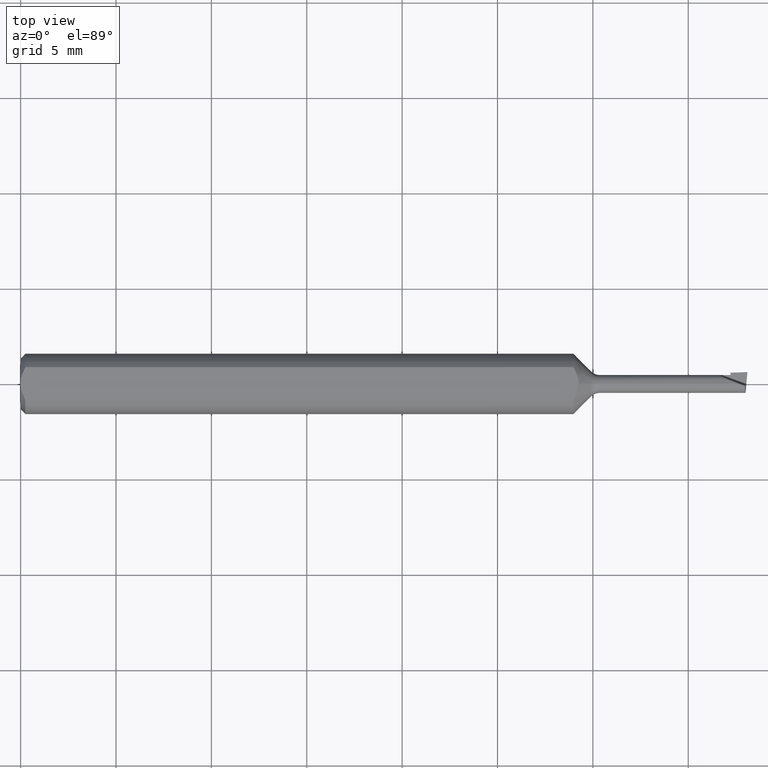
[diagram: clean part render]
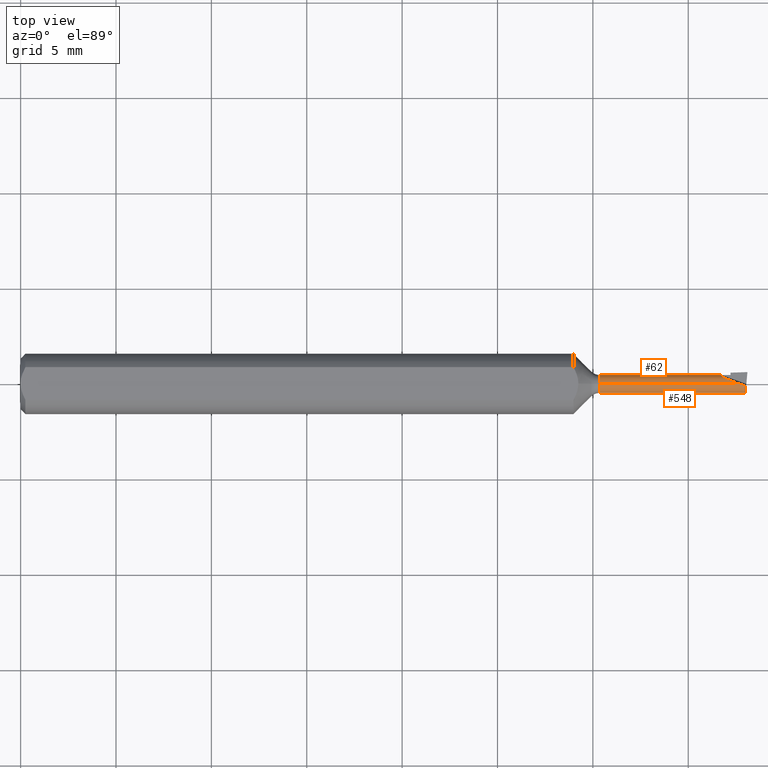
[diagram: same view with one multi-face feature highlighted, each face labeled with its STEP entity id]
A machine part, top view. The highlighted faces form ONE feature: a constant-radius fillet chain: 2 tangent blend faces with common blend radius 0.4699 mm. The faces share edges in the B-rep.
Their STEP definitions:
[1] entity #548 (Cylinder):
#7 =( BOUNDED_CURVE ( )  B_SPLINE_CURVE ( 3, ( #480, #334, #144, #529 ),
 .UNSPECIFIED., .F., .F. ) 
 B_SPLINE_CURVE_WITH_KNOTS ( ( 4, 4 ),
 ( 5.951448363857583246, 7.298880934359464945 ),
 .UNSPECIFIED. ) 
 CURVE ( )  GEOMETRIC_REPRESENTATION_ITEM ( )  RATIONAL_B_SPLINE_CURVE ( ( 1.000000000000000000, 0.8543389983611022753, 0.8543389983611022753, 1.000000000000000000 ) ) 
 REPRESENTATION_ITEM ( '' )  );
#12 =( BOUNDED_CURVE ( )  B_SPLINE_CURVE ( 3, ( #616, #91, #581, #425 ),
 .UNSPECIFIED., .F., .F. ) 
 B_SPLINE_CURVE_WITH_KNOTS ( ( 4, 4 ),
 ( 5.728084607564618125, 7.298880934359528894 ),
 .UNSPECIFIED. ) 
 CURVE ( )  GEOMETRIC_REPRESENTATION_ITEM ( )  RATIONAL_B_SPLINE_CURVE ( ( 1.000000000000000000, 0.8047378541243617178, 0.8047378541243617178, 1.000000000000000000 ) ) 
 REPRESENTATION_ITEM ( '' )  );
#17 = ORIENTED_EDGE ( 'NONE', *, *, #364, .T. ) ;
#26 = VERTEX_POINT ( 'NONE', #348 ) ;
#46 = CARTESIAN_POINT ( 'NONE',  ( 1.487126106453287244, -0.001380280959563399447, 0.01850000000000000602 ) ) ;
#56 = EDGE_LOOP ( 'NONE', ( #467, #411, #431, #479, #17, #503 ) ) ;
#67 = EDGE_CURVE ( 'NONE', #143, #620, #317, .T. ) ;
#90 = VERTEX_POINT ( 'NONE', #599 ) ;
#91 = CARTESIAN_POINT ( 'NONE',  ( 1.494298471761238201, -0.01083704909609784980, -0.01850000000000001643 ) ) ;
#99 = CYLINDRICAL_SURFACE ( 'NONE', #485, 0.01850000000000000255 ) ;
#130 = VERTEX_POINT ( 'NONE', #212 ) ;
#139 = CARTESIAN_POINT ( 'NONE',  ( 1.483333815684383605, 0.000000000000000000, 0.01850000000000000255 ) ) ;
#143 = VERTEX_POINT ( 'NONE', #252 ) ;
#144 = CARTESIAN_POINT ( 'NONE',  ( 1.494967355536287013, -0.01849999999999990541, 0.009006612182587492646 ) ) ;
#178 = LINE ( 'NONE', #530, #306 ) ;
#190 = AXIS2_PLACEMENT_3D ( 'NONE', #277, #377, #619 ) ;
#195 = FACE_OUTER_BOUND ( 'NONE', #56, .T. ) ;
#212 = CARTESIAN_POINT ( 'NONE',  ( 1.195355339059327449, 0.000000000000000000, 0.01850000000000000949 ) ) ;
#247 = DIRECTION ( 'NONE',  ( 0.000000000000000000, 0.000000000000000000, 1.000000000000000000 ) ) ;
#252 = CARTESIAN_POINT ( 'NONE',  ( 1.494952902551172302, -0.004097954674002866546, 0.01804042038007480295 ) ) ;
#277 = CARTESIAN_POINT ( 'NONE',  ( 1.195355339059327449, 0.000000000000000000, 0.000000000000000000 ) ) ;
#298 = CARTESIAN_POINT ( 'NONE',  ( 0.000000000000000000, 0.000000000000000000, 0.000000000000000000 ) ) ;
#306 = VECTOR ( 'NONE', #323, 39.37007874015748143 ) ;
#317 =( BOUNDED_CURVE ( )  B_SPLINE_CURVE ( 3, ( #545, #605, #46, #541 ),
 .UNSPECIFIED., .F., .F. ) 
 B_SPLINE_CURVE_WITH_KNOTS ( ( 4, 4 ),
 ( 4.766799014753298813, 4.990162771046300350 ),
 .UNSPECIFIED. ) 
 CURVE ( )  GEOMETRIC_REPRESENTATION_ITEM ( )  RATIONAL_B_SPLINE_CURVE ( ( 1.000000000000000000, 0.9958467056734143785, 0.9958467056734143785, 1.000000000000000000 ) ) 
 REPRESENTATION_ITEM ( '' )  );
#323 = DIRECTION ( 'NONE',  ( -1.000000000000000000, -0.000000000000000000, -0.000000000000000000 ) ) ;
#334 = CARTESIAN_POINT ( 'NONE',  ( 1.494465960141844851, -0.01288082332125570564, 0.01604535613734157234 ) ) ;
#348 = CARTESIAN_POINT ( 'NONE',  ( 1.496237987468385322, -0.01849999999999996439, 2.732599657287118718E-16 ) ) ;
#364 = EDGE_CURVE ( 'NONE', #620, #130, #178, .T. ) ;
#377 = DIRECTION ( 'NONE',  ( -1.000000000000000000, -0.000000000000000000, -0.000000000000000000 ) ) ;
#383 = LINE ( 'NONE', #422, #606 ) ;
#411 = ORIENTED_EDGE ( 'NONE', *, *, #463, .T. ) ;
#422 = CARTESIAN_POINT ( 'NONE',  ( 0.000000000000000000, 2.265596578422603809E-18, -0.01850000000000000255 ) ) ;
#425 = CARTESIAN_POINT ( 'NONE',  ( 1.496237987468385322, -0.01849999999999996439, 2.732599657287118718E-16 ) ) ;
#427 = CIRCLE ( 'NONE', #190, 0.01850000000000000949 ) ;
#431 = ORIENTED_EDGE ( 'NONE', *, *, #643, .F. ) ;
#433 = DIRECTION ( 'NONE',  ( -1.000000000000000000, -0.000000000000000000, -0.000000000000000000 ) ) ;
#443 = EDGE_CURVE ( 'NONE', #90, #130, #427, .T. ) ;
#463 = EDGE_CURVE ( 'NONE', #570, #26, #12, .T. ) ;
#467 = ORIENTED_EDGE ( 'NONE', *, *, #611, .F. ) ;
#479 = ORIENTED_EDGE ( 'NONE', *, *, #67, .T. ) ;
#480 = CARTESIAN_POINT ( 'NONE',  ( 1.494952902551172302, -0.004097954674002866546, 0.01804042038007480295 ) ) ;
#485 = AXIS2_PLACEMENT_3D ( 'NONE', #298, #493, #247 ) ;
#493 = DIRECTION ( 'NONE',  ( -1.000000000000000000, -0.000000000000000000, -0.000000000000000000 ) ) ;
#503 = ORIENTED_EDGE ( 'NONE', *, *, #443, .F. ) ;
#529 = CARTESIAN_POINT ( 'NONE',  ( 1.496237987468385322, -0.01849999999999996439, 2.732599657287118718E-16 ) ) ;
#530 = CARTESIAN_POINT ( 'NONE',  ( 0.000000000000000000, 0.000000000000000000, 0.01850000000000000255 ) ) ;
#541 = CARTESIAN_POINT ( 'NONE',  ( 1.483333815684383605, 0.000000000000000000, 0.01850000000000000255 ) ) ;
#545 = CARTESIAN_POINT ( 'NONE',  ( 1.494952902551172302, -0.004097954674002866546, 0.01804042038007480295 ) ) ;
#548 = ADVANCED_FACE ( 'NONE', ( #195 ), #99, .T. ) ;
#570 = VERTEX_POINT ( 'NONE', #578 ) ;
#578 = CARTESIAN_POINT ( 'NONE',  ( 1.495246590703220857, 2.265596578422603809E-18, -0.01850000000000000255 ) ) ;
#581 = CARTESIAN_POINT ( 'NONE',  ( 1.494709121747062719, -0.01850000000000015174, -0.01083704909609761562 ) ) ;
#599 = CARTESIAN_POINT ( 'NONE',  ( 1.195355339059327449, 2.265596578422604194E-18, -0.01850000000000000949 ) ) ;
#605 = CARTESIAN_POINT ( 'NONE',  ( 1.491015288325890253, -0.002751962849509067850, 0.01834616788330073467 ) ) ;
#606 = VECTOR ( 'NONE', #433, 39.37007874015748143 ) ;
#611 = EDGE_CURVE ( 'NONE', #570, #90, #383, .T. ) ;
#616 = CARTESIAN_POINT ( 'NONE',  ( 1.495246590703220857, 2.265596578422603809E-18, -0.01850000000000000255 ) ) ;
#619 = DIRECTION ( 'NONE',  ( 0.000000000000000000, 0.000000000000000000, 1.000000000000000000 ) ) ;
#620 = VERTEX_POINT ( 'NONE', #139 ) ;
#643 = EDGE_CURVE ( 'NONE', #143, #26, #7, .T. ) ;
[2] entity #62 (Cylinder):
#1 = CARTESIAN_POINT ( 'NONE',  ( 0.000000000000000000, 0.000000000000000000, 0.000000000000000000 ) ) ;
#9 = DIRECTION ( 'NONE',  ( -1.000000000000000000, -0.000000000000000000, -0.000000000000000000 ) ) ;
#29 = ORIENTED_EDGE ( 'NONE', *, *, #611, .T. ) ;
#43 = CARTESIAN_POINT ( 'NONE',  ( 1.446998957439701083, 0.01849999999999999908, -4.483286445232968331E-18 ) ) ;
#62 = ADVANCED_FACE ( 'NONE', ( #257 ), #206, .T. ) ;
#70 = CARTESIAN_POINT ( 'NONE',  ( 1.495558491035186899, 0.003224263161052950705, -0.01828867062739698499 ) ) ;
#78 =( BOUNDED_CURVE ( )  B_SPLINE_CURVE ( 3, ( #95, #292, #487, #43 ),
 .UNSPECIFIED., .F., .F. ) 
 B_SPLINE_CURVE_WITH_KNOTS ( ( 4, 4 ),
 ( 4.990162771046300350, 6.560959097841200460 ),
 .UNSPECIFIED. ) 
 CURVE ( )  GEOMETRIC_REPRESENTATION_ITEM ( )  RATIONAL_B_SPLINE_CURVE ( ( 1.000000000000000000, 0.8047378541243641603, 0.8047378541243641603, 1.000000000000000000 ) ) 
 REPRESENTATION_ITEM ( '' )  );
#81 = DIRECTION ( 'NONE',  ( -1.000000000000000000, 0.000000000000000000, 0.000000000000000000 ) ) ;
#85 = EDGE_CURVE ( 'NONE', #130, #90, #544, .T. ) ;
#90 = VERTEX_POINT ( 'NONE', #599 ) ;
#95 = CARTESIAN_POINT ( 'NONE',  ( 1.483333815684383605, 0.000000000000000000, 0.01850000000000000255 ) ) ;
#114 = DIRECTION ( 'NONE',  ( 1.000000000000000000, 0.000000000000000000, 0.000000000000000000 ) ) ;
#117 = VECTOR ( 'NONE', #114, 39.37007874015748143 ) ;
#130 = VERTEX_POINT ( 'NONE', #212 ) ;
#139 = CARTESIAN_POINT ( 'NONE',  ( 1.483333815684383605, 0.000000000000000000, 0.01850000000000000255 ) ) ;
#158 = DIRECTION ( 'NONE',  ( -1.000000000000000000, -0.000000000000000000, -0.000000000000000000 ) ) ;
#174 = VERTEX_POINT ( 'NONE', #518 ) ;
#178 = LINE ( 'NONE', #530, #306 ) ;
#180 = AXIS2_PLACEMENT_3D ( 'NONE', #466, #365, #524 ) ;
#191 = LINE ( 'NONE', #526, #452 ) ;
#206 = CYLINDRICAL_SURFACE ( 'NONE', #294, 0.01850000000000000255 ) ;
#209 = VERTEX_POINT ( 'NONE', #408 ) ;
#212 = CARTESIAN_POINT ( 'NONE',  ( 1.195355339059327449, 0.000000000000000000, 0.01850000000000000949 ) ) ;
#228 = CARTESIAN_POINT ( 'NONE',  ( 1.495754431199804557, 0.004788152334396648772, -0.01786962778634774984 ) ) ;
#243 = EDGE_CURVE ( 'NONE', #547, #174, #267, .T. ) ;
#255 = DIRECTION ( 'NONE',  ( 0.000000000000000000, 0.000000000000000000, 1.000000000000000000 ) ) ;
#257 = FACE_OUTER_BOUND ( 'NONE', #582, .T. ) ;
#265 = AXIS2_PLACEMENT_3D ( 'NONE', #446, #9, #255 ) ;
#267 = LINE ( 'NONE', #456, #117 ) ;
#273 = CARTESIAN_POINT ( 'NONE',  ( 1.495754431199804557, 0.004788152334396648772, -0.01786962778634774984 ) ) ;
#286 = EDGE_CURVE ( 'NONE', #330, #570, #380, .T. ) ;
#292 = CARTESIAN_POINT ( 'NONE',  ( 1.453559267999332549, 0.01083704909609771623, 0.01850000000000004072 ) ) ;
#294 = AXIS2_PLACEMENT_3D ( 'NONE', #1, #158, #347 ) ;
#306 = VECTOR ( 'NONE', #323, 39.37007874015748143 ) ;
#323 = DIRECTION ( 'NONE',  ( -1.000000000000000000, -0.000000000000000000, -0.000000000000000000 ) ) ;
#325 = ORIENTED_EDGE ( 'NONE', *, *, #364, .F. ) ;
#330 = VERTEX_POINT ( 'NONE', #273 ) ;
#333 = ORIENTED_EDGE ( 'NONE', *, *, #243, .T. ) ;
#347 = DIRECTION ( 'NONE',  ( 0.000000000000000000, 0.000000000000000000, 1.000000000000000000 ) ) ;
#364 = EDGE_CURVE ( 'NONE', #620, #130, #178, .T. ) ;
#365 = DIRECTION ( 'NONE',  ( -1.000000000000000000, -0.000000000000000000, -0.000000000000000000 ) ) ;
#380 =( BOUNDED_CURVE ( )  B_SPLINE_CURVE ( 3, ( #228, #70, #506, #607 ),
 .UNSPECIFIED., .F., .F. ) 
 B_SPLINE_CURVE_WITH_KNOTS ( ( 4, 4 ),
 ( 5.466285219765468995, 5.728084607564618125 ),
 .UNSPECIFIED. ) 
 CURVE ( )  GEOMETRIC_REPRESENTATION_ITEM ( )  RATIONAL_B_SPLINE_CURVE ( ( 1.000000000000000000, 0.9942965742492069214, 0.9942965742492069214, 1.000000000000000000 ) ) 
 REPRESENTATION_ITEM ( '' )  );
#383 = LINE ( 'NONE', #422, #606 ) ;
#389 = EDGE_CURVE ( 'NONE', #174, #209, #513, .T. ) ;
#408 = CARTESIAN_POINT ( 'NONE',  ( 1.465000000000000080, 0.004788152334396648772, -0.01786962778634774984 ) ) ;
#422 = CARTESIAN_POINT ( 'NONE',  ( 0.000000000000000000, 2.265596578422603809E-18, -0.01850000000000000255 ) ) ;
#424 = ORIENTED_EDGE ( 'NONE', *, *, #286, .T. ) ;
#433 = DIRECTION ( 'NONE',  ( -1.000000000000000000, -0.000000000000000000, -0.000000000000000000 ) ) ;
#446 = CARTESIAN_POINT ( 'NONE',  ( 1.195355339059327449, 0.000000000000000000, 0.000000000000000000 ) ) ;
#452 = VECTOR ( 'NONE', #81, 39.37007874015748143 ) ;
#456 = CARTESIAN_POINT ( 'NONE',  ( 2.815371162439451627E-33, 0.01850000000000000255, -6.508939666095427711E-17 ) ) ;
#459 = ORIENTED_EDGE ( 'NONE', *, *, #85, .F. ) ;
#466 = CARTESIAN_POINT ( 'NONE',  ( 1.465000000000000080, 0.000000000000000000, 0.000000000000000000 ) ) ;
#474 = EDGE_CURVE ( 'NONE', #330, #209, #191, .T. ) ;
#487 = CARTESIAN_POINT ( 'NONE',  ( 1.438508876927481195, 0.01850000000000000949, 0.01083704909609776827 ) ) ;
#498 = ORIENTED_EDGE ( 'NONE', *, *, #389, .T. ) ;
#506 = CARTESIAN_POINT ( 'NONE',  ( 1.495388239854692269, 0.001619057209963974077, -0.01849999999999999908 ) ) ;
#513 = CIRCLE ( 'NONE', #180, 0.01849999999999999908 ) ;
#518 = CARTESIAN_POINT ( 'NONE',  ( 1.465000000000000080, 0.01850000000000000255, -6.508939666095427711E-17 ) ) ;
#524 = DIRECTION ( 'NONE',  ( 0.000000000000000000, 0.000000000000000000, 1.000000000000000000 ) ) ;
#526 = CARTESIAN_POINT ( 'NONE',  ( 1.560200597524541877, 0.004788152334396648772, -0.01786962778634774984 ) ) ;
#530 = CARTESIAN_POINT ( 'NONE',  ( 0.000000000000000000, 0.000000000000000000, 0.01850000000000000255 ) ) ;
#544 = CIRCLE ( 'NONE', #265, 0.01850000000000000949 ) ;
#547 = VERTEX_POINT ( 'NONE', #633 ) ;
#554 = EDGE_CURVE ( 'NONE', #620, #547, #78, .T. ) ;
#570 = VERTEX_POINT ( 'NONE', #578 ) ;
#576 = ORIENTED_EDGE ( 'NONE', *, *, #554, .T. ) ;
#578 = CARTESIAN_POINT ( 'NONE',  ( 1.495246590703220857, 2.265596578422603809E-18, -0.01850000000000000255 ) ) ;
#582 = EDGE_LOOP ( 'NONE', ( #424, #29, #459, #325, #576, #333, #498, #593 ) ) ;
#593 = ORIENTED_EDGE ( 'NONE', *, *, #474, .F. ) ;
#599 = CARTESIAN_POINT ( 'NONE',  ( 1.195355339059327449, 2.265596578422604194E-18, -0.01850000000000000949 ) ) ;
#606 = VECTOR ( 'NONE', #433, 39.37007874015748143 ) ;
#607 = CARTESIAN_POINT ( 'NONE',  ( 1.495246590703220857, 2.265596578422603809E-18, -0.01850000000000000255 ) ) ;
#611 = EDGE_CURVE ( 'NONE', #570, #90, #383, .T. ) ;
#620 = VERTEX_POINT ( 'NONE', #139 ) ;
#633 = CARTESIAN_POINT ( 'NONE',  ( 1.446998957439701083, 0.01849999999999999908, -4.483286445232968331E-18 ) ) ;